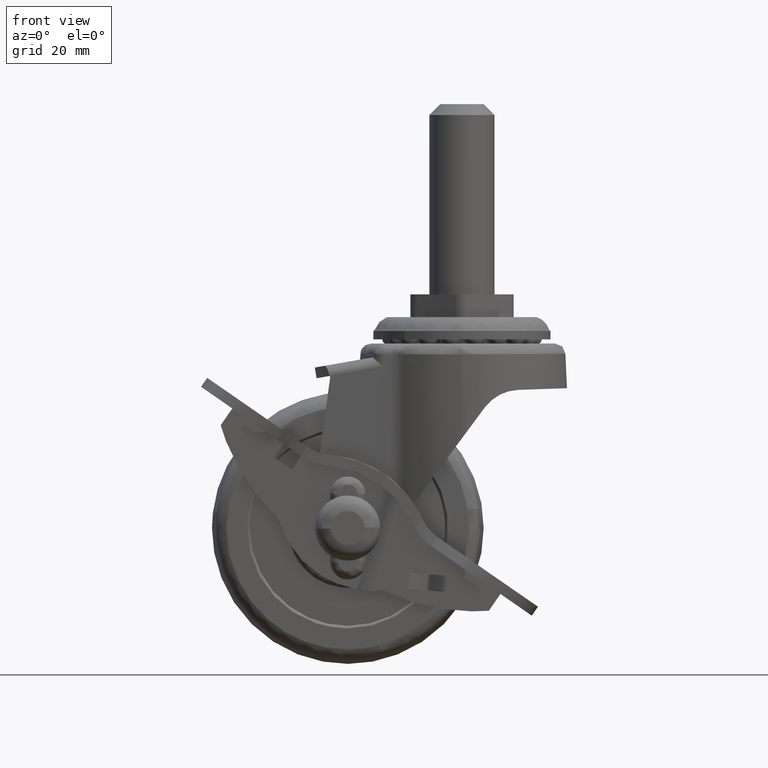
[diagram: clean part render]
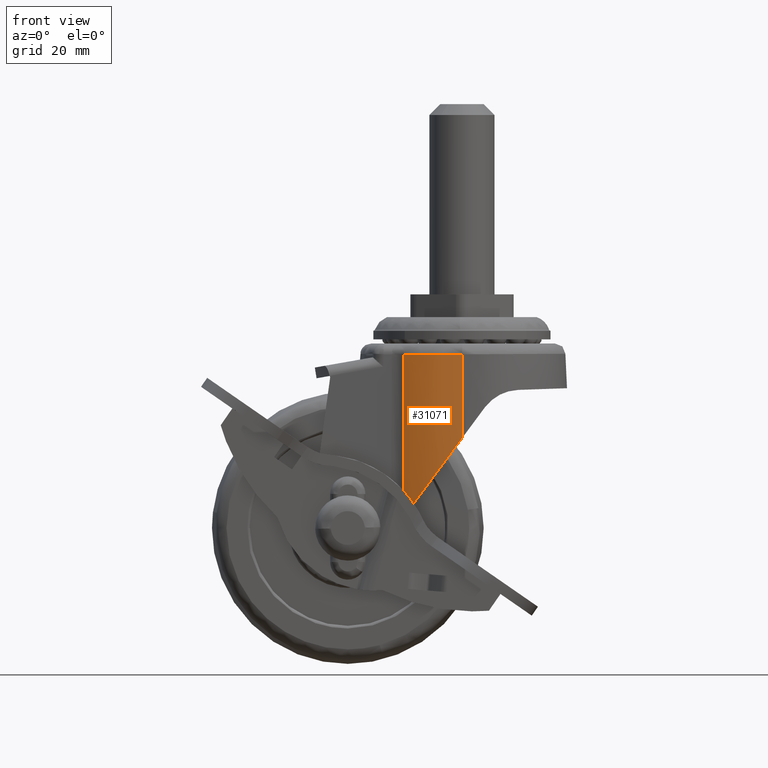
[diagram: same view with one face highlighted and labeled with its STEP entity id]
A machine part, front view. The second image highlights one B-rep face of the part: STEP entity #31071.
In plain terms, the highlighted face is a freeform B-spline surface patch.
Its self-contained STEP definition (entity closure, byte-faithful):
#19166=CARTESIAN_POINT('',(10.292671116726099,-15.695639782608700,31.959998999999900));
#19167=VERTEX_POINT('',#19166);
#19265=CARTESIAN_POINT('',(10.292671116726121,-15.695639782608700,2.039727973014595));
#19266=VERTEX_POINT('',#19265);
#19282=CARTESIAN_POINT('',(10.292671116726099,-15.695639782608700,31.959998999999900));
#19283=CARTESIAN_POINT('',(10.292671116726121,-15.695639782608700,2.039727973014595));
#19284=QUASI_UNIFORM_CURVE('',1,(#19282,#19283),.UNSPECIFIED.,.F.,.U.);
#19285=EDGE_CURVE('',#19167,#19266,#19284,.T.);
#26644=CARTESIAN_POINT('',(21.0,-19.0,31.959998999999900));
#26645=VERTEX_POINT('',#26644);
#26700=CARTESIAN_POINT('',(21.0,-19.0,31.959998999999900));
#26701=CARTESIAN_POINT('',(19.992865661126778,-19.000040891388078,31.959998999999950));
#26702=CARTESIAN_POINT('',(17.800860882867230,-18.825389549730112,31.959998999999829));
#26703=CARTESIAN_POINT('',(14.113466220991731,-17.873864845731081,31.959999000000039));
#26704=CARTESIAN_POINT('',(11.613835646495881,-16.597457123433340,31.959998999999680));
#26705=CARTESIAN_POINT('',(10.292671116726099,-15.695639782608700,31.959998999999900));
#26706=B_SPLINE_CURVE_WITH_KNOTS('',3,(#26700,#26701,#26702,#26703,#26704,#26705),.UNSPECIFIED.,.F.,.U.,(4,1,1,4),(3.365106E-009,3.021420748709828,6.576025270618751,11.374756461585079),.UNSPECIFIED.);
#26707=EDGE_CURVE('',#26645,#19167,#26706,.T.);
#29215=CARTESIAN_POINT('',(21.0,-19.0,16.505699334126650));
#29216=VERTEX_POINT('',#29215);
#29222=CARTESIAN_POINT('',(10.292671116726130,-15.695639782608710,2.039727973014582));
#29223=CARTESIAN_POINT('',(15.136460660276459,-19.000000000000004,8.583855045240009));
#29224=CARTESIAN_POINT('',(21.0,-19.0,16.505699334126650));
#29232=(BOUNDED_CURVE()B_SPLINE_CURVE(2,(#29222,#29223,#29224),.UNSPECIFIED.,.F.,.U.)CURVE()GEOMETRIC_REPRESENTATION_ITEM()QUASI_UNIFORM_CURVE()RATIONAL_B_SPLINE_CURVE((1.0,0.955532915274988,1.0))REPRESENTATION_ITEM(''));
#29233=EDGE_CURVE('',#19266,#29216,#29232,.T.);
#31021=CARTESIAN_POINT('',(21.0,-19.0,31.959998999999900));
#31022=CARTESIAN_POINT('',(21.0,-19.0,16.505699334126650));
#31023=QUASI_UNIFORM_CURVE('',1,(#31021,#31022),.UNSPECIFIED.,.F.,.U.);
#31024=EDGE_CURVE('',#26645,#29216,#31023,.T.);
#31051=CARTESIAN_POINT('',(9.837473799383970,-15.375240122370791,32.708005775674543));
#31052=CARTESIAN_POINT('',(9.837473799383970,-15.375240122370791,1.273021027948097));
#31053=CARTESIAN_POINT('',(15.082004840239355,-19.182804406736924,32.708005775674536));
#31054=CARTESIAN_POINT('',(15.082004840239355,-19.182804406736924,1.273021027948097));
#31055=CARTESIAN_POINT('',(21.560133168729759,-18.991741648234598,32.708005775674543));
#31056=CARTESIAN_POINT('',(21.560133168729759,-18.991741648234598,1.273021027948097));
#31064=(BOUNDED_SURFACE()B_SPLINE_SURFACE(1,2,((#31051,#31053,#31055),(#31052,#31054,#31056)),.UNSPECIFIED.,.F.,.F.,.U.)B_SPLINE_SURFACE_WITH_KNOTS((2,2),(3,3),(0.0,31.434984747726439),(0.0,12.605281725082699),.UNSPECIFIED.)GEOMETRIC_REPRESENTATION_ITEM()RATIONAL_B_SPLINE_SURFACE(((0.998381096812144,0.941794452425818,0.991782881753059),(0.998381096812144,0.941794452425818,0.991782881753059)))REPRESENTATION_ITEM('')SURFACE());
#31065=ORIENTED_EDGE('',*,*,#26707,.T.);
#31066=ORIENTED_EDGE('',*,*,#19285,.T.);
#31067=ORIENTED_EDGE('',*,*,#29233,.T.);
#31068=ORIENTED_EDGE('',*,*,#31024,.F.);
#31069=EDGE_LOOP('',(#31065,#31066,#31067,#31068));
#31070=FACE_OUTER_BOUND('',#31069,.T.);
#31071=ADVANCED_FACE('',(#31070),#31064,.T.);